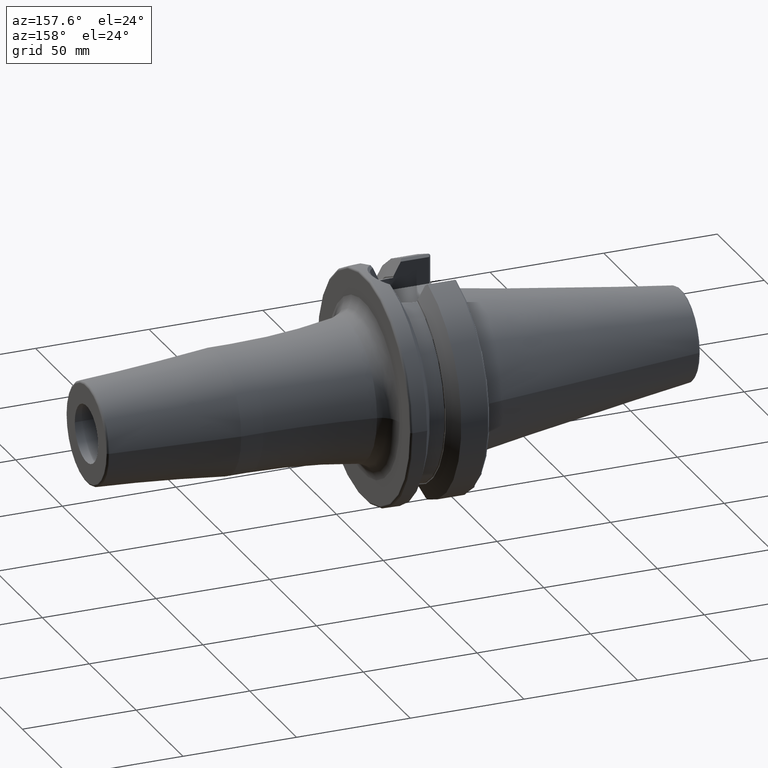
[diagram: clean part render]
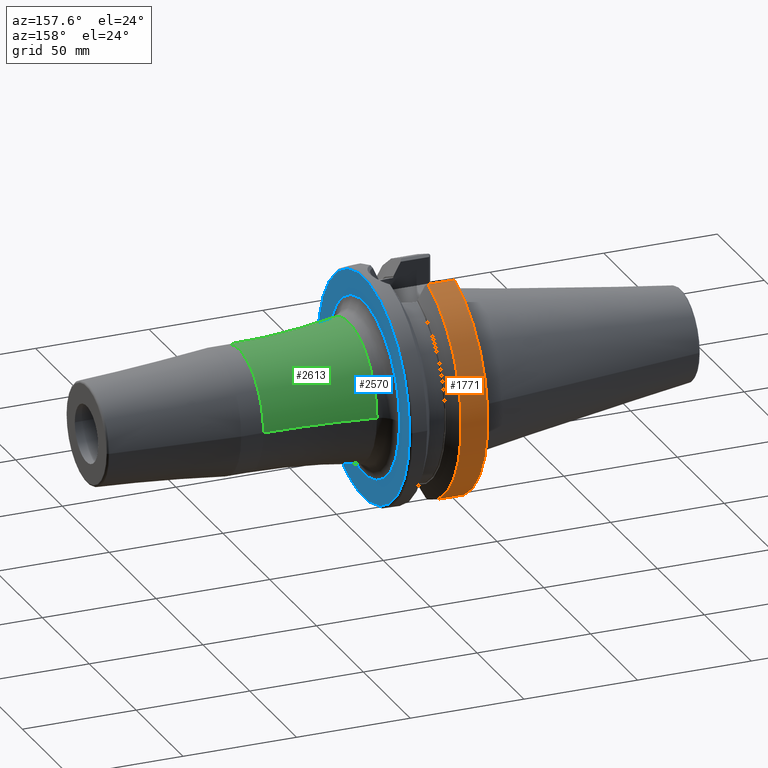
[diagram: same view with three faces highlighted in distinct colors, each labeled with its STEP entity id]
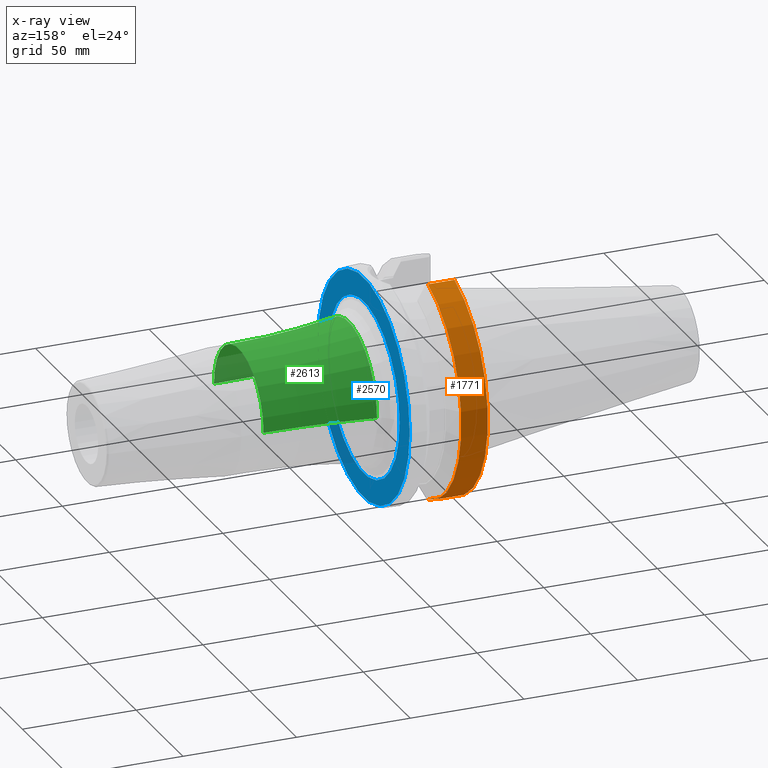
[diagram: x-ray of the same camera — body ghosted, the three highlighted faces saturated]
A machine part, auxiliary view with three faces highlighted in distinct colors.
The next image is the same camera in x-ray (body ghosted, the three faces saturated) — at least one of them is partly hidden behind the body in this view.
Their STEP definitions:

[orange] entity #1771 — the highlighted cylindrical surface (partial cylindrical patch) has radius 49.9875 mm, axis along (1, 0, 0).
#227=CARTESIAN_POINT('',(4.E0,0.E0,0.E0));
#228=DIRECTION('',(-1.E0,0.E0,0.E0));
#229=DIRECTION('',(0.E0,2.837968869610E-1,9.588844179312E-1));
#230=AXIS2_PLACEMENT_3D('',#227,#228,#229);
#232=DIRECTION('',(-1.E0,-7.302338022926E-8,-9.708531933347E-8));
#233=VECTOR('',#232,1.166933176412E1);
#234=CARTESIAN_POINT('',(1.566933176383E1,1.386327333875E1,-4.802665727057E1));
#235=LINE('',#234,#233);
#236=CARTESIAN_POINT('',(1.566933176383E1,0.E0,0.E0));
#237=DIRECTION('',(1.E0,0.E0,0.E0));
#238=DIRECTION('',(0.E0,2.773348004750E-1,-9.607733387462E-1));
#239=AXIS2_PLACEMENT_3D('',#236,#237,#238);
#241=DIRECTION('',(9.999999999989E-1,8.887251737038E-7,-1.189757232592E-6));
#242=VECTOR('',#241,1.166933177277E1);
#243=CARTESIAN_POINT('',(3.999999991073E0,1.418628651613E1,4.793224872501E1));
#244=LINE('',#243,#242);
#571=CARTESIAN_POINT('',(3.999999999701E0,1.386327248661E1,-4.802665840350E1));
#1362=CARTESIAN_POINT('',(1.566933176383E1,1.386327333875E1,-4.802665727057E1));
#1363=CARTESIAN_POINT('',(1.566933176383E1,1.418629688696E1,4.793223484134E1));
#1364=VERTEX_POINT('',#1362);
#1365=VERTEX_POINT('',#1363);
#1377=CARTESIAN_POINT('',(4.E0,1.418631682991E1,4.793222893890E1));
#1379=VERTEX_POINT('',#1377);
#1394=VERTEX_POINT('',#571);
#1757=CARTESIAN_POINT('',(-1.0879E2,0.E0,0.E0));
#1758=DIRECTION('',(1.E0,0.E0,0.E0));
#1759=DIRECTION('',(0.E0,-1.E0,0.E0));
#1760=AXIS2_PLACEMENT_3D('',#1757,#1758,#1759);
#1761=CYLINDRICAL_SURFACE('',#1760,4.99875E1);
#1763=ORIENTED_EDGE('',*,*,#1762,.T.);
#1765=ORIENTED_EDGE('',*,*,#1764,.F.);
#1766=ORIENTED_EDGE('',*,*,#1710,.T.);
#1768=ORIENTED_EDGE('',*,*,#1767,.F.);
#1769=EDGE_LOOP('',(#1763,#1765,#1766,#1768));
#1770=FACE_OUTER_BOUND('',#1769,.F.);
#1771=ADVANCED_FACE('',(#1770),#1761,.T.);
#231=CIRCLE('',#230,4.99875E1);
#240=CIRCLE('',#239,4.99875E1);
#1710=EDGE_CURVE('',#1364,#1365,#240,.T.);
#1762=EDGE_CURVE('',#1379,#1394,#231,.T.);
#1764=EDGE_CURVE('',#1364,#1394,#235,.T.);
#1767=EDGE_CURVE('',#1379,#1365,#244,.T.);

[blue] entity #2570 — the highlighted planar face has unit normal (1, 0, 0).
#814=CARTESIAN_POINT('',(3.8E1,0.E0,0.E0));
#815=DIRECTION('',(1.E0,0.E0,0.E0));
#816=DIRECTION('',(0.E0,1.E0,0.E0));
#817=AXIS2_PLACEMENT_3D('',#814,#815,#816);
#829=CARTESIAN_POINT('',(3.8E1,0.E0,0.E0));
#830=DIRECTION('',(-1.E0,0.E0,0.E0));
#831=DIRECTION('',(0.E0,1.E0,0.E0));
#832=AXIS2_PLACEMENT_3D('',#829,#830,#831);
#834=CARTESIAN_POINT('',(3.8E1,0.E0,0.E0));
#835=DIRECTION('',(1.E0,0.E0,0.E0));
#836=DIRECTION('',(0.E0,-1.E0,0.E0));
#837=AXIS2_PLACEMENT_3D('',#834,#835,#836);
#839=CARTESIAN_POINT('',(3.8E1,0.E0,0.E0));
#840=DIRECTION('',(1.E0,0.E0,0.E0));
#841=DIRECTION('',(0.E0,1.E0,0.E0));
#842=AXIS2_PLACEMENT_3D('',#839,#840,#841);
#1322=CARTESIAN_POINT('',(3.8E1,4.89875E1,0.E0));
#1323=VERTEX_POINT('',#1322);
#1324=CARTESIAN_POINT('',(3.8E1,-4.89875E1,-1.199847701465E-14));
#1325=VERTEX_POINT('',#1324);
#1431=CARTESIAN_POINT('',(3.8E1,-3.830735609666E1,-1.495523178881E-13));
#1432=CARTESIAN_POINT('',(3.8E1,3.830735609666E1,1.448610197853E-13));
#1433=VERTEX_POINT('',#1431);
#1434=VERTEX_POINT('',#1432);
#2555=CARTESIAN_POINT('',(3.8E1,0.E0,0.E0));
#2556=DIRECTION('',(1.E0,0.E0,0.E0));
#2557=DIRECTION('',(0.E0,-1.E0,0.E0));
#2558=AXIS2_PLACEMENT_3D('',#2555,#2556,#2557);
#2559=PLANE('',#2558);
#2560=ORIENTED_EDGE('',*,*,#2550,.T.);
#2561=ORIENTED_EDGE('',*,*,#2534,.F.);
#2562=EDGE_LOOP('',(#2560,#2561));
#2563=FACE_OUTER_BOUND('',#2562,.F.);
#2565=ORIENTED_EDGE('',*,*,#2564,.T.);
#2567=ORIENTED_EDGE('',*,*,#2566,.T.);
#2568=EDGE_LOOP('',(#2565,#2567));
#2569=FACE_BOUND('',#2568,.F.);
#2570=ADVANCED_FACE('',(#2563,#2569),#2559,.T.);
#818=CIRCLE('',#817,4.89875E1);
#833=CIRCLE('',#832,4.89875E1);
#838=CIRCLE('',#837,3.830735609666E1);
#843=CIRCLE('',#842,3.830735609666E1);
#2534=EDGE_CURVE('',#1323,#1325,#818,.T.);
#2550=EDGE_CURVE('',#1323,#1325,#833,.T.);
#2564=EDGE_CURVE('',#1433,#1434,#838,.T.);
#2566=EDGE_CURVE('',#1434,#1433,#843,.T.);

[green] entity #2613 — the highlighted toroidal blend (fillet) surface has major radius 326.5 mm and minor (blend) radius 300 mm.
#854=CARTESIAN_POINT('',(4.471232876712E1,0.E0,0.E0));
#855=DIRECTION('',(1.E0,0.E0,0.E0));
#856=DIRECTION('',(0.E0,1.E0,0.E0));
#857=AXIS2_PLACEMENT_3D('',#854,#855,#856);
#864=CARTESIAN_POINT('',(9.3E1,-3.265E2,-7.996943598432E-14));
#865=DIRECTION('',(0.E0,0.E0,1.E0));
#866=DIRECTION('',(0.E0,1.E0,0.E0));
#867=AXIS2_PLACEMENT_3D('',#864,#865,#866);
#869=CARTESIAN_POINT('',(9.3E1,3.265E2,3.998471799216E-14));
#870=DIRECTION('',(0.E0,0.E0,-1.E0));
#871=DIRECTION('',(0.E0,-1.E0,0.E0));
#872=AXIS2_PLACEMENT_3D('',#869,#870,#871);
#892=CARTESIAN_POINT('',(9.3E1,0.E0,0.E0));
#893=DIRECTION('',(1.E0,0.E0,0.E0));
#894=DIRECTION('',(0.E0,1.E0,0.E0));
#895=AXIS2_PLACEMENT_3D('',#892,#893,#894);
#1435=CARTESIAN_POINT('',(4.471232876712E1,-3.041166722259E1,0.E0));
#1436=CARTESIAN_POINT('',(4.471232876712E1,3.041166722259E1,0.E0));
#1437=VERTEX_POINT('',#1435);
#1438=VERTEX_POINT('',#1436);
#1439=CARTESIAN_POINT('',(9.3E1,2.65E1,0.E0));
#1440=VERTEX_POINT('',#1439);
#1441=CARTESIAN_POINT('',(9.3E1,-2.65E1,0.E0));
#1442=VERTEX_POINT('',#1441);
#2599=CARTESIAN_POINT('',(9.3E1,0.E0,0.E0));
#2600=DIRECTION('',(1.E0,0.E0,0.E0));
#2601=DIRECTION('',(0.E0,-1.E0,0.E0));
#2602=AXIS2_PLACEMENT_3D('',#2599,#2600,#2601);
#2603=TOROIDAL_SURFACE('',#2602,3.265E2,3.E2);
#2604=ORIENTED_EDGE('',*,*,#2593,.F.);
#2606=ORIENTED_EDGE('',*,*,#2605,.F.);
#2608=ORIENTED_EDGE('',*,*,#2607,.T.);
#2610=ORIENTED_EDGE('',*,*,#2609,.T.);
#2611=EDGE_LOOP('',(#2604,#2606,#2608,#2610));
#2612=FACE_OUTER_BOUND('',#2611,.F.);
#2613=ADVANCED_FACE('',(#2612),#2603,.F.);
#858=CIRCLE('',#857,3.041166722259E1);
#868=CIRCLE('',#867,3.E2);
#873=CIRCLE('',#872,3.E2);
#896=CIRCLE('',#895,2.65E1);
#2593=EDGE_CURVE('',#1438,#1437,#858,.T.);
#2605=EDGE_CURVE('',#1440,#1438,#873,.T.);
#2607=EDGE_CURVE('',#1440,#1442,#896,.T.);
#2609=EDGE_CURVE('',#1442,#1437,#868,.T.);